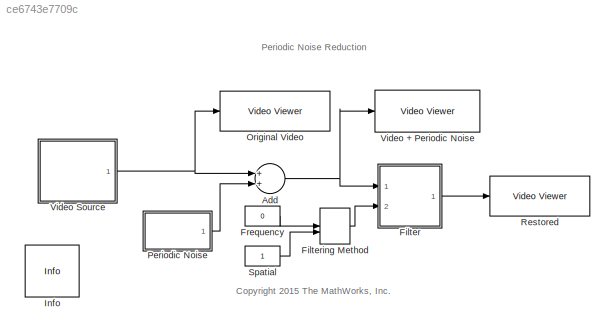
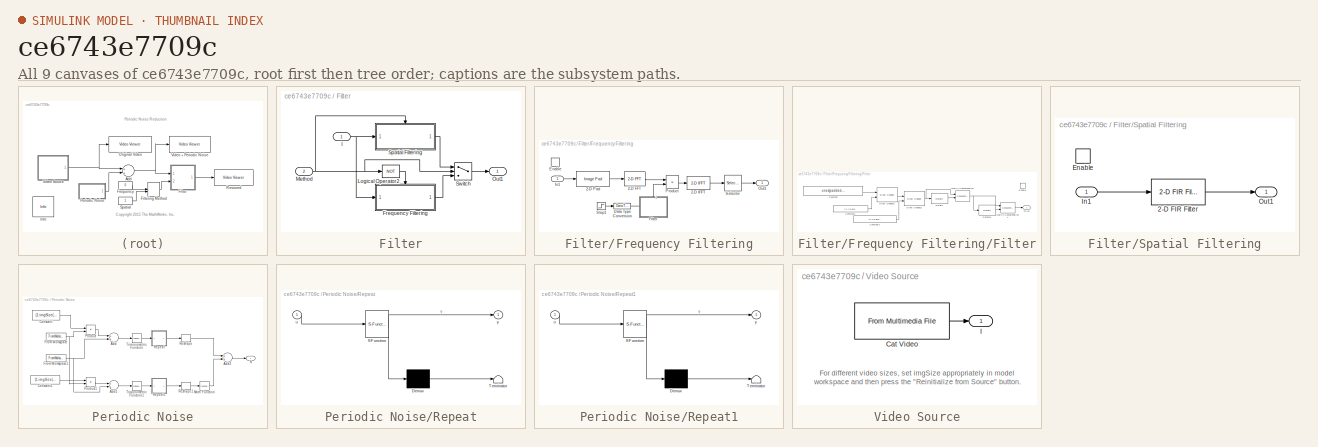
[diagram: thumbnail index - all 9 canvases of the model, root first then tree order]
MODEL slx_ce6743e7709c
KIND model
CONFIG AbsTol = auto
CONFIG FixedStep = auto
CONFIG MaxStep = auto
CONFIG MinStep = auto
CONFIG RelTol = 1e-3
CONFIG SampleTimeConstraint = Unconstrained
CONFIG Solver = FixedStepDiscrete
CONFIG SolverMode = Auto
CONFIG SolverName = FixedStepDiscrete
CONFIG StartTime = 0.0
CONFIG StopTime = inf
WORKSPACE source: MATLAB code (in-file)
WORKSPACE imgSize = [120 160]
WORKSPACE paddedSize = 2^ceil(log2(max(imgSize)))
WORKSPACE cf = 0.65
WORKSPACE f = cf-0.04:0.005:cf+0.04
WORKSPACE f = repmat(f,[7,1])
WORKSPACE f = f(:)
WORKSPACE code: ft.time=[];
WORKSPACE code: ft.signals.values=f;
WORKSPACE code: ft.signals.dimensions=1;
WORKSPACE p = 0:0.5:3
WORKSPACE code: pt.time=[];
WORKSPACE code: pt.signals.values=p';
WORKSPACE code: pt.signals.dimensions= 1;
WORKSPACE b = [ 0.0128   -0.0172    0.0010    0.0153   -0.0098 ...
WORKSPACE code: 0.0002   -0.0149    0.0283    0.0129   -0.0852 ...
WORKSPACE code: 0.0790    0.0478   -0.1639    0.1058    0.0897 ...
WORKSPACE code: 0.8012    0.0897    0.1058   -0.1639    0.0478 ...
WORKSPACE code: 0.0790   -0.0852    0.0129    0.0283   -0.0149 ...
WORKSPACE code: 0.0002   -0.0098    0.0153    0.0010   -0.0172 ...
WORKSPACE code: 0.0128 ];
WORKSPACE h = ftrans2(b)
BLOCK [Sum] Add
  InputSameDT = off
  OutDataTypeStr = Inherit: Inherit via internal rule
  Ports = [2, 1]
  SaturateOnIntegerOverflow = off
BLOCK [SubSystem] Filter
  Ports = [2, 1]
  RequestExecContextInheritance = off
  Variant = off
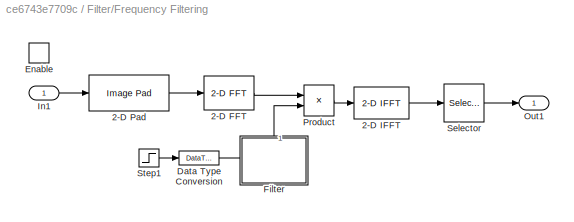
BLOCK [SubSystem] Filter/Frequency Filtering
  Ports = [1, 1, 1]
  RequestExecContextInheritance = off
  TreatAsAtomicUnit = on
  Variant = off
BLOCK [Reference] Filter/Frequency Filtering/2-D FFT  REF=visiontransforms/2-D FFT
  Ports = [1, 1]
  SourceBlock = visiontransforms/2-D FFT
  SourceType = 2-D FFT
BLOCK [Reference] Filter/Frequency Filtering/2-D IFFT  REF=visiontransforms/2-D IFFT
  Ports = [1, 1]
  SourceBlock = visiontransforms/2-D IFFT
  SourceType = 2-D IFFT
BLOCK [Reference] Filter/Frequency Filtering/2-D Pad  REF=visionutilities/Image Pad
  Ports = [1, 1]
  SourceBlock = visionutilities/Image Pad
  SourceType = Image Pad
BLOCK [DataTypeConversion] Filter/Frequency Filtering/Data Type Conversion
  OutDataTypeStr = boolean
  RndMeth = Floor
  SaturateOnIntegerOverflow = off
BLOCK [EnablePort] Filter/Frequency Filtering/Enable
  Ports = []
  PropagateVarSize = During execution
BLOCK [SubSystem] Filter/Frequency Filtering/Filter
  Ports = [0, 1, 1]
  RequestExecContextInheritance = off
  TreatAsAtomicUnit = on
  Variant = off
BLOCK [Constant] Filter/Frequency Filtering/Filter/Constant
  Value = ones(paddedSize/2,paddedSize/2,'single')
BLOCK [Constant] Filter/Frequency Filtering/Filter/Constant1
  Value = [1 1  0.8*paddedSize/2]
BLOCK [Constant] Filter/Frequency Filtering/Filter/Constant2
  Value = [1 1  0.5*paddedSize/2]
BLOCK [Reference] Filter/Frequency Filtering/Filter/Draw Shapes1  REF=visiontextngfix/Draw Shapes
  Ports = [2, 1]
  SourceBlock = visiontextngfix/Draw Shapes
  SourceType = Draw Shapes
BLOCK [Reference] Filter/Frequency Filtering/Filter/Draw Shapes2  REF=visiontextngfix/Draw Shapes
  Ports = [2, 1]
  SourceBlock = visiontextngfix/Draw Shapes
  SourceType = Draw Shapes
BLOCK [EnablePort] Filter/Frequency Filtering/Filter/Enable
  Ports = []
  PropagateVarSize = During execution
BLOCK [Outport] Filter/Frequency Filtering/Filter/Filter
  IconDisplay = Port number
BLOCK [Concatenate] Filter/Frequency Filtering/Filter/Matrix Concatenation
  ConcatenateDimension = 2
  Mode = Multidimensional array
  Ports = [2, 1]
BLOCK [Concatenate] Filter/Frequency Filtering/Filter/Matrix Concatenation1
  Mode = Multidimensional array
  Ports = [2, 1]
BLOCK [Reference] Filter/Frequency Filtering/Filter/Rotate  REF=visiongeotforms/Rotate
  Ports = [1, 1]
  SourceBlock = visiongeotforms/Rotate
  SourceType = Rotate
BLOCK [Reference] Filter/Frequency Filtering/Filter/Rotate1  REF=visiongeotforms/Rotate
  Ports = [1, 1]
  SourceBlock = visiongeotforms/Rotate
  SourceType = Rotate
BLOCK [Inport] Filter/Frequency Filtering/In1
  IconDisplay = Port number
BLOCK [Outport] Filter/Frequency Filtering/Out1
  IconDisplay = Port number
BLOCK [Product] Filter/Frequency Filtering/Product
  InputSameDT = off
  OutDataTypeStr = Inherit: Inherit via internal rule
  Ports = [2, 1]
  SaturateOnIntegerOverflow = off
BLOCK [Selector] Filter/Frequency Filtering/Selector
  IndexOptions = Index vector (dialog),Index vector (dialog)
  Indices = [1:imgSize(1)],[1:imgSize(2)]
  InputPortWidth = 3
  NumberOfDimensions = 2
  OutputSizes = 1,1
  Ports = [1, 1]
BLOCK [Step] Filter/Frequency Filtering/Step1
  After = 0
  Before = 1
  Time = eps
BLOCK [Inport] Filter/I
  IconDisplay = Port number
BLOCK [Logic] Filter/Logical Operator2
  AllPortsSameDT = off
  Operator = NOT
  OutDataTypeStr = boolean
  Ports = [1, 1]
BLOCK [Inport] Filter/Method
  IconDisplay = Port number
  Port = 2
BLOCK [Outport] Filter/Out1
  IconDisplay = Port number
BLOCK [SubSystem] Filter/Spatial Filtering
  Ports = [1, 1, 1]
  RequestExecContextInheritance = off
  TreatAsAtomicUnit = on
  Variant = off
BLOCK [Reference] Filter/Spatial Filtering/2-D FIR Filter  REF=visionfilter/2-D FIR Filter
  Ports = [1, 1]
  SourceBlock = visionfilter/2-D FIR Filter
  SourceType = 2-D FIR Filter
BLOCK [EnablePort] Filter/Spatial Filtering/Enable
  Ports = []
  PropagateVarSize = During execution
BLOCK [Inport] Filter/Spatial Filtering/In1
  IconDisplay = Port number
BLOCK [Outport] Filter/Spatial Filtering/Out1
  IconDisplay = Port number
BLOCK [Switch] Filter/Switch
  Criteria = u2 ~= 0
  InputSameDT = off
  SaturateOnIntegerOverflow = off
  ZeroCross = off
BLOCK [ManualSwitch] Filtering Method
BLOCK [Constant] Frequency
  Value = 0
BLOCK [Reference] Info  REF=vipmisc/Info
  Ports = []
  SourceBlock = vipmisc/Info
  SourceType = Info
BLOCK [Reference] Original Video  REF=visionsinks/Video Viewer
  Ports = [1]
  SourceBlock = visionsinks/Video Viewer
  SourceType = Video Viewer
  UserDataPersistent = on
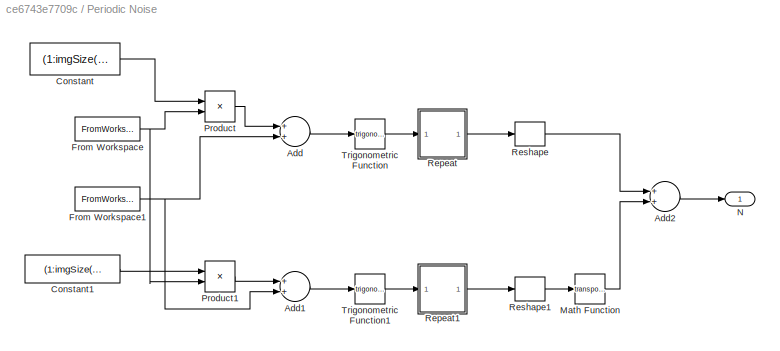
BLOCK [SubSystem] Periodic Noise
  Ports = [0, 1]
  RequestExecContextInheritance = off
  Variant = off
BLOCK [Sum] Periodic Noise/Add
  InputSameDT = off
  OutDataTypeStr = Inherit: Inherit via internal rule
  Ports = [2, 1]
  SaturateOnIntegerOverflow = off
BLOCK [Sum] Periodic Noise/Add1
  InputSameDT = off
  OutDataTypeStr = Inherit: Inherit via internal rule
  Ports = [2, 1]
  SaturateOnIntegerOverflow = off
BLOCK [Sum] Periodic Noise/Add2
  InputSameDT = off
  OutDataTypeStr = Inherit: Inherit via internal rule
  Ports = [2, 1]
  SaturateOnIntegerOverflow = off
BLOCK [Constant] Periodic Noise/Constant
  Value = (1:imgSize(2))*pi
BLOCK [Constant] Periodic Noise/Constant1
  Value = (1:imgSize(1))*pi
BLOCK [FromWorkspace] Periodic Noise/From Workspace
  Interpolate = off
  OutputAfterFinalValue = Cyclic repetition
  VariableName = ft
  ZeroCross = on
BLOCK [FromWorkspace] Periodic Noise/From Workspace1
  Interpolate = off
  OutputAfterFinalValue = Cyclic repetition
  VariableName = pt
  ZeroCross = on
BLOCK [Math] Periodic Noise/Math Function
  Operator = transpose
  Ports = [1, 1]
BLOCK [Outport] Periodic Noise/N
  IconDisplay = Port number
BLOCK [Product] Periodic Noise/Product
  InputSameDT = off
  OutDataTypeStr = Inherit: Inherit via internal rule
  Ports = [2, 1]
  SaturateOnIntegerOverflow = off
BLOCK [Product] Periodic Noise/Product1
  InputSameDT = off
  OutDataTypeStr = Inherit: Inherit via internal rule
  Ports = [2, 1]
  SaturateOnIntegerOverflow = off
BLOCK [SubSystem] Periodic Noise/Repeat
  ErrorFcn = Stateflow.Translate.translate
  PermitHierarchicalResolution = ExplicitOnly
  Ports = [1, 1]
  RequestExecContextInheritance = off
  SFBlockType = MATLAB Function
  TreatAsAtomicUnit = on
  Variant = off
BLOCK [Demux] Periodic Noise/Repeat/ Demux 
  Outputs = 1
  Ports = [1, 1]
BLOCK [S-Function] Periodic Noise/Repeat/ SFunction 
  EnableBusSupport = on
  FunctionName = sf_sfun
  Parameters = imgSize
  PortCounts = [1 2]
  Ports = [1, 2]
  SFunctionDeploymentMode = off
  Tag = Stateflow S-Function vipstripes 2
BLOCK [Terminator] Periodic Noise/Repeat/ Terminator 
BLOCK [Inport] Periodic Noise/Repeat/u
  IconDisplay = Port number
BLOCK [Outport] Periodic Noise/Repeat/y
  IconDisplay = Port number
BLOCK [SubSystem] Periodic Noise/Repeat1
  ErrorFcn = Stateflow.Translate.translate
  PermitHierarchicalResolution = ExplicitOnly
  Ports = [1, 1]
  RequestExecContextInheritance = off
  SFBlockType = MATLAB Function
  TreatAsAtomicUnit = on
  Variant = off
BLOCK [Demux] Periodic Noise/Repeat1/ Demux 
  Outputs = 1
  Ports = [1, 1]
BLOCK [S-Function] Periodic Noise/Repeat1/ SFunction 
  EnableBusSupport = on
  FunctionName = sf_sfun
  Parameters = imgSize
  PortCounts = [1 2]
  Ports = [1, 2]
  SFunctionDeploymentMode = off
  Tag = Stateflow S-Function vipstripes 1
BLOCK [Terminator] Periodic Noise/Repeat1/ Terminator 
BLOCK [Inport] Periodic Noise/Repeat1/u
  IconDisplay = Port number
BLOCK [Outport] Periodic Noise/Repeat1/y
  IconDisplay = Port number
BLOCK [Reshape] Periodic Noise/Reshape
  OutputDimensionality = Customize
  OutputDimensions = imgSize
  Ports = [1, 1]
BLOCK [Reshape] Periodic Noise/Reshape1
  OutputDimensionality = Customize
  OutputDimensions = fliplr(imgSize)
  Ports = [1, 1]
BLOCK [Trigonometry] Periodic Noise/Trigonometric Function
  Ports = [1, 1]
BLOCK [Trigonometry] Periodic Noise/Trigonometric Function1
  Ports = [1, 1]
BLOCK [Reference] Restored  REF=visionsinks/Video Viewer
  Ports = [1]
  SourceBlock = visionsinks/Video Viewer
  SourceType = Video Viewer
  UserDataPersistent = on
BLOCK [Constant] Spatial 
BLOCK [Reference] Video + Periodic Noise  REF=visionsinks/Video Viewer
  Ports = [1]
  SourceBlock = visionsinks/Video Viewer
  SourceType = Video Viewer
  UserDataPersistent = on
BLOCK [SubSystem] Video Source
  Ports = [0, 1]
  RequestExecContextInheritance = off
  Variant = off
BLOCK [Reference] Video Source/Cat Video  REF=dspvision/From Multimedia File
  Ports = [0, 1]
  SourceBlock = dspvision/From Multimedia File
  SourceType = From Multimedia File
BLOCK [Outport] Video Source/I
  IconDisplay = Port number
ANNOTATION (root): <copyright redacted>
ANNOTATION (root): Periodic Noise Reduction
ANNOTATION Video Source: For different video sizes, set imgSize appropriately in model workspace and then press the "Reinitialize from Source" button.
NET Add:1 -> Filter:1, Video + Periodic Noise:1
LINE Filter/Frequency Filtering/2-D FFT:1 -> Filter/Frequency Filtering/Product:1
LINE Filter/Frequency Filtering/2-D IFFT:1 -> Filter/Frequency Filtering/Selector:1
LINE Filter/Frequency Filtering/2-D Pad:1 -> Filter/Frequency Filtering/2-D FFT:1
LINE Filter/Frequency Filtering/Data Type Conversion:1 -> Filter/Frequency Filtering/Filter:enable
LINE Filter/Frequency Filtering/Filter/Constant1:1 -> Filter/Frequency Filtering/Filter/Draw Shapes1:2
LINE Filter/Frequency Filtering/Filter/Constant2:1 -> Filter/Frequency Filtering/Filter/Draw Shapes2:2
LINE Filter/Frequency Filtering/Filter/Constant:1 -> Filter/Frequency Filtering/Filter/Draw Shapes1:1
LINE Filter/Frequency Filtering/Filter/Draw Shapes1:1 -> Filter/Frequency Filtering/Filter/Draw Shapes2:1
NET Filter/Frequency Filtering/Filter/Draw Shapes2:1 -> Filter/Frequency Filtering/Filter/Matrix Concatenation:1, Filter/Frequency Filtering/Filter/Rotate:1
LINE Filter/Frequency Filtering/Filter/Matrix Concatenation1:1 -> Filter/Frequency Filtering/Filter/Filter:1
NET Filter/Frequency Filtering/Filter/Matrix Concatenation:1 -> Filter/Frequency Filtering/Filter/Matrix Concatenation1:1, Filter/Frequency Filtering/Filter/Rotate1:1
LINE Filter/Frequency Filtering/Filter/Rotate1:1 -> Filter/Frequency Filtering/Filter/Matrix Concatenation1:2
LINE Filter/Frequency Filtering/Filter/Rotate:1 -> Filter/Frequency Filtering/Filter/Matrix Concatenation:2
LINE Filter/Frequency Filtering/Filter:1 -> Filter/Frequency Filtering/Product:2
LINE Filter/Frequency Filtering/In1:1 -> Filter/Frequency Filtering/2-D Pad:1
LINE Filter/Frequency Filtering/Product:1 -> Filter/Frequency Filtering/2-D IFFT:1
LINE Filter/Frequency Filtering/Selector:1 -> Filter/Frequency Filtering/Out1:1
LINE Filter/Frequency Filtering/Step1:1 -> Filter/Frequency Filtering/Data Type Conversion:1
LINE Filter/Frequency Filtering:1 -> Filter/Switch:3
NET Filter/I:1 -> Filter/Frequency Filtering:1, Filter/Spatial Filtering:1
LINE Filter/Logical Operator2:1 -> Filter/Frequency Filtering:enable
NET Filter/Method:1 -> Filter/Logical Operator2:1, Filter/Spatial Filtering:enable, Filter/Switch:2
LINE Filter/Spatial Filtering/2-D FIR Filter:1 -> Filter/Spatial Filtering/Out1:1
LINE Filter/Spatial Filtering/In1:1 -> Filter/Spatial Filtering/2-D FIR Filter:1
LINE Filter/Spatial Filtering:1 -> Filter/Switch:1
LINE Filter/Switch:1 -> Filter/Out1:1
LINE Filter:1 -> Restored:1
LINE Filtering Method:1 -> Filter:2
LINE Frequency:1 -> Filtering Method:1
LINE Periodic Noise/Add1:1 -> Periodic Noise/Trigonometric Function1:1
LINE Periodic Noise/Add2:1 -> Periodic Noise/N:1
LINE Periodic Noise/Add:1 -> Periodic Noise/Trigonometric Function:1
LINE Periodic Noise/Constant1:1 -> Periodic Noise/Product1:1
LINE Periodic Noise/Constant:1 -> Periodic Noise/Product:1
NET Periodic Noise/From Workspace1:1 -> Periodic Noise/Add1:2, Periodic Noise/Add:2
NET Periodic Noise/From Workspace:1 -> Periodic Noise/Product1:2, Periodic Noise/Product:2
LINE Periodic Noise/Math Function:1 -> Periodic Noise/Add2:2
LINE Periodic Noise/Product1:1 -> Periodic Noise/Add1:1
LINE Periodic Noise/Product:1 -> Periodic Noise/Add:1
LINE Periodic Noise/Repeat1:1 -> Periodic Noise/Reshape1:1
LINE Periodic Noise/Repeat:1 -> Periodic Noise/Reshape:1
LINE Periodic Noise/Reshape1:1 -> Periodic Noise/Math Function:1
LINE Periodic Noise/Reshape:1 -> Periodic Noise/Add2:1
LINE Periodic Noise/Trigonometric Function1:1 -> Periodic Noise/Repeat1:1
LINE Periodic Noise/Trigonometric Function:1 -> Periodic Noise/Repeat:1
LINE Periodic Noise:1 -> Add:2
LINE Spatial :1 -> Filtering Method:2
LINE Video Source/Cat Video:1 -> Video Source/I:1
NET Video Source:1 -> Add:1, Original Video:1
note: NET lines group one-source signal fan-out (src -> all destinations, sorted); 1:1 wires keep LINE
CHART Periodic Noise/Repeat1 states=1 transitions=1
  STATE_LABEL 'eML_blk_kernel()'
  STATE_LABEL 'SCRIPT:\nfunction y = fcn(u, imgSize)\n%#codegen\n\ny = u ( kron(1:imgSize(1), ones(1,imgSize(2)) ) );'
CHART Periodic Noise/Repeat states=1 transitions=1
  STATE_LABEL 'eML_blk_kernel()'
  STATE_LABEL 'SCRIPT:\nfunction y = fcn(u, imgSize)\n%#codegen\n\ny = u ( kron(1:imgSize(2), ones(1,imgSize(1)) ) );'
